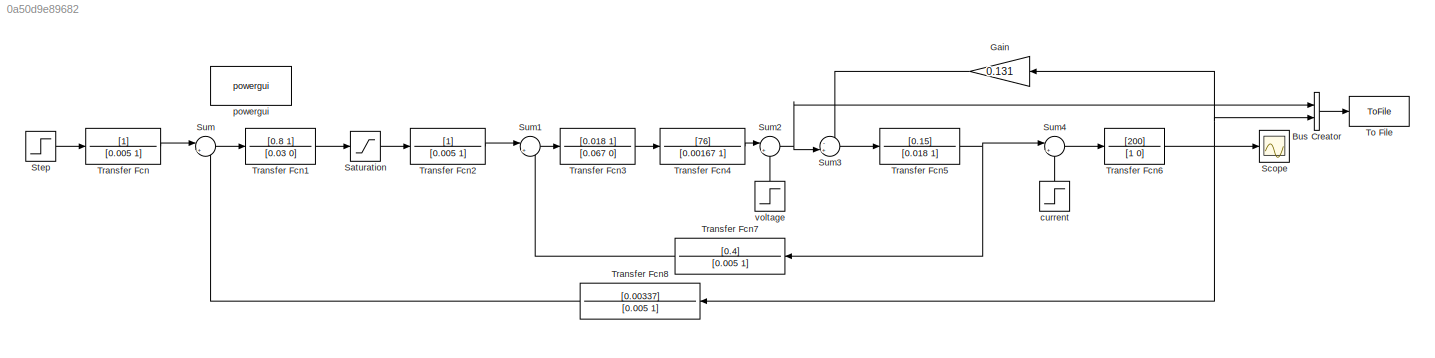
MODEL slx_0a50d9e89682
KIND model
CONFIG AbsTol = auto
CONFIG EnableMultiTasking = off
CONFIG FixedStep = auto
CONFIG MaxStep = auto
CONFIG MinStep = auto
CONFIG RelTol = 1e-3
CONFIG SampleTimeConstraint = Unconstrained
CONFIG Solver = ode45
CONFIG SolverName = ode45
CONFIG StartTime = 0.0
CONFIG StopTime = 5.0
BLOCK [BusCreator] Bus Creator
  DisplayOption = bar
  InheritFromInputs = on
  Inputs = 2
  Ports = [2, 1]
BLOCK [Gain] Gain
  Gain = 0.131
  OutDataTypeStr = Inherit: Inherit via internal rule
  ParamDataTypeStr = Inherit: Inherit via internal rule
  SaturateOnIntegerOverflow = off
BLOCK [Saturate] Saturation
  InputPortMap = u0
  LowerLimit = -8
  Ports = [1, 1]
  UpperLimit = 8
BLOCK [Scope] Scope
  Floating = off
  NumInputPorts = 1
  Ports = [1]
  ScopeSpecificationString = Simulink.scopes.TimeScopeBlockCfg('CurrentConfiguration', extmgr.ConfigurationSet(extmgr.Configuration('Core','General UI',true),extmgr.Configuration('Core','Source UI',true),extmgr.Configuration('Sources','WiredSimulink',true),extmgr.Configuration('Visuals','Time Domain',true,'SerializedDisplays',{struct('MinYLimReal','-235.14733','MaxYLimReal','2116.32596','YLabelReal','','MinYLimMag',' 0.00000'...<+1351ch>
BLOCK [Step] Step
  After = 5
  SampleTime = 0
  Time = 0
BLOCK [Sum] Sum
  IconShape = round
  InputSameDT = off
  Inputs = |+-
  OutDataTypeStr = Inherit: Inherit via internal rule
  Ports = [2, 1]
  SaturateOnIntegerOverflow = off
BLOCK [Sum] Sum1
  IconShape = round
  InputSameDT = off
  Inputs = |+-
  OutDataTypeStr = Inherit: Inherit via internal rule
  Ports = [2, 1]
  SaturateOnIntegerOverflow = off
BLOCK [Sum] Sum2
  IconShape = round
  InputSameDT = off
  Inputs = |++
  OutDataTypeStr = Inherit: Inherit via internal rule
  Ports = [2, 1]
  SaturateOnIntegerOverflow = off
BLOCK [Sum] Sum3
  IconShape = round
  InputSameDT = off
  Inputs = -+|
  OutDataTypeStr = Inherit: Inherit via internal rule
  Ports = [2, 1]
  SaturateOnIntegerOverflow = off
BLOCK [Sum] Sum4
  IconShape = round
  InputSameDT = off
  Inputs = |+-
  OutDataTypeStr = Inherit: Inherit via internal rule
  Ports = [2, 1]
  SaturateOnIntegerOverflow = off
BLOCK [ToFile] To File
  Filename = sim_n_la.mat
  MatrixName = signals
  Ports = [1]
BLOCK [TransferFcn] Transfer Fcn
  Denominator = [0.005 1]
BLOCK [TransferFcn] Transfer Fcn1
  Denominator = [0.03 0]
  Numerator = [0.8 1]
BLOCK [TransferFcn] Transfer Fcn2
  Denominator = [0.005 1]
BLOCK [TransferFcn] Transfer Fcn3
  Denominator = [0.067 0]
  Numerator = [0.018 1]
BLOCK [TransferFcn] Transfer Fcn4
  Denominator = [0.00167 1]
  Numerator = [76]
BLOCK [TransferFcn] Transfer Fcn5
  Denominator = [0.018 1]
  Numerator = [0.15]
BLOCK [TransferFcn] Transfer Fcn6
  Denominator = [1 0]
  Numerator = [200]
BLOCK [TransferFcn] Transfer Fcn7
  Denominator = [0.005 1]
  Numerator = [0.4]
BLOCK [TransferFcn] Transfer Fcn8
  Denominator = [0.005 1]
  Numerator = [0.00337]
BLOCK [Step] current
  After = 0
  SampleTime = 0
  Time = 3.5
BLOCK [Reference] powergui  REF=powerlib/powergui
  Ports = []
  Priority = 1
  SourceBlock = powerlib/powergui
  SourceProductBaseCode = PS
  SourceProductName = Simscape Power Systems
  SourceType = PSB option menu block
BLOCK [Step] voltage
  After = -100
  SampleTime = 0
  Time = 3.5
LINE Bus Creator:1 -> To File:1
LINE Gain:1 -> Sum3:1
LINE Saturation:1 -> Transfer Fcn2:1
LINE Step:1 -> Transfer Fcn:1
LINE Sum1:1 -> Transfer Fcn3:1
NET Sum2:1 -> Bus Creator:1, Sum3:2
LINE Sum3:1 -> Transfer Fcn5:1
LINE Sum4:1 -> Transfer Fcn6:1
LINE Sum:1 -> Transfer Fcn1:1
LINE Transfer Fcn1:1 -> Saturation:1
LINE Transfer Fcn2:1 -> Sum1:1
LINE Transfer Fcn3:1 -> Transfer Fcn4:1
LINE Transfer Fcn4:1 -> Sum2:1
NET Transfer Fcn5:1 -> Sum4:1, Transfer Fcn7:1
NET Transfer Fcn6:1 -> Bus Creator:2, Gain:1, Scope:1, Transfer Fcn8:1
LINE Transfer Fcn7:1 -> Sum1:2
LINE Transfer Fcn8:1 -> Sum:2
LINE Transfer Fcn:1 -> Sum:1
LINE current:1 -> Sum4:2
LINE voltage:1 -> Sum2:2
note: NET lines group one-source signal fan-out (src -> all destinations, sorted); 1:1 wires keep LINE
